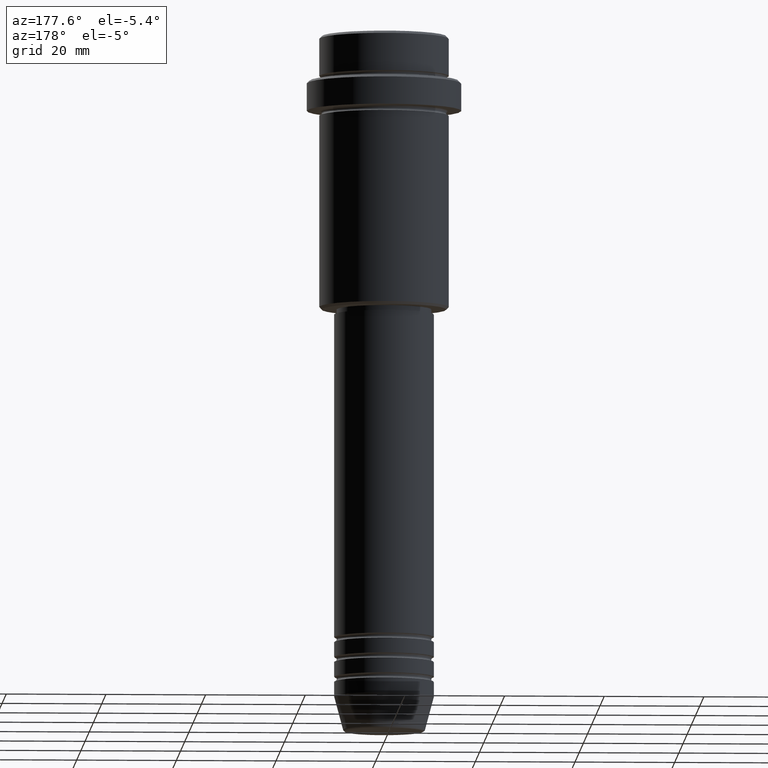
[diagram: clean part render]
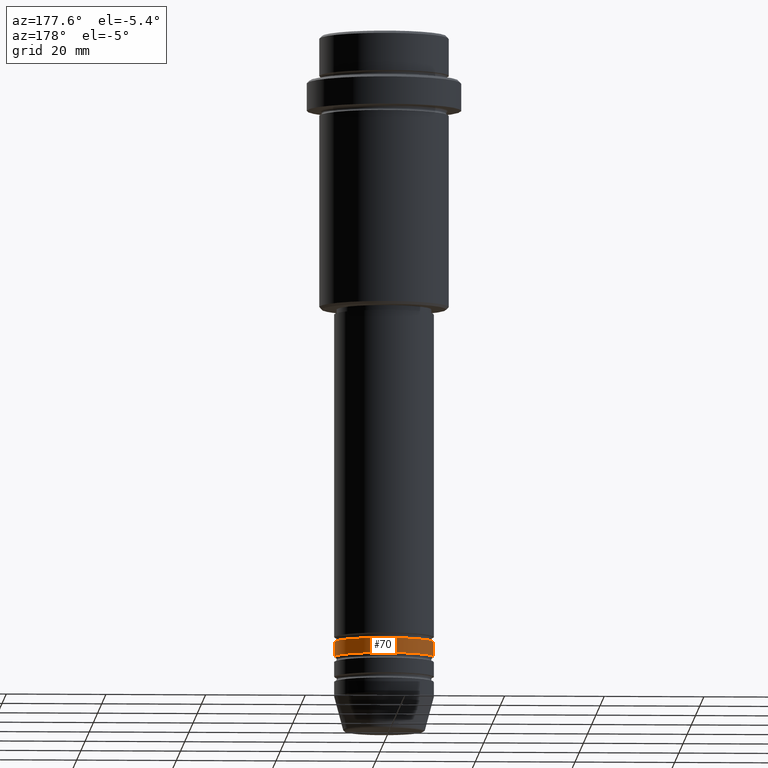
[diagram: same view with one face highlighted and labeled with its STEP entity id]
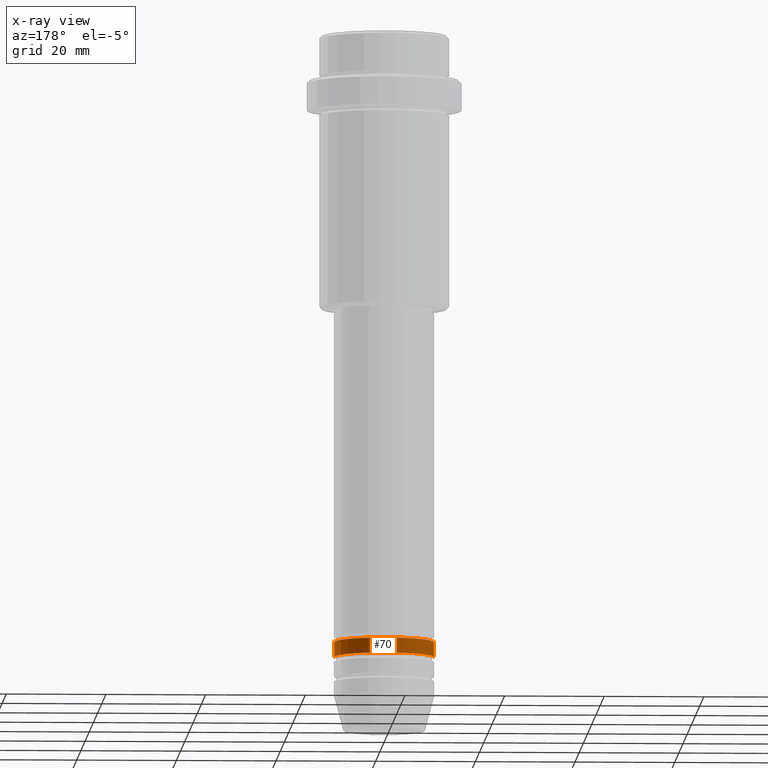
[diagram: x-ray of the same camera — body ghosted, the highlighted face saturated]
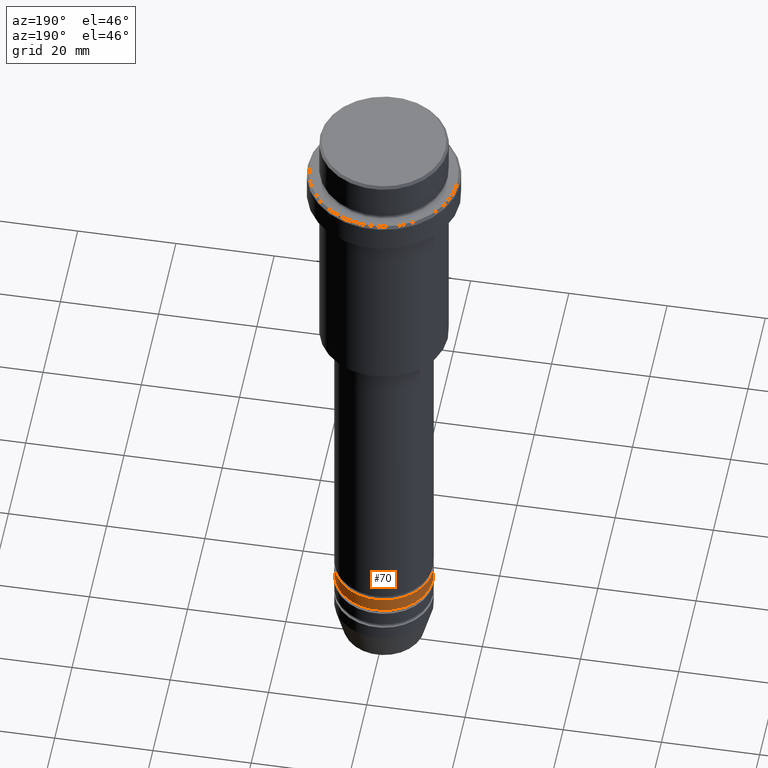
[diagram: same view with one face highlighted and labeled with its STEP entity id]
A machine part, auxiliary view. The second image highlights one B-rep face of the part: STEP entity #70.
The next image is the same camera in x-ray: the body ghosted, the highlighted face saturated — about 0% of this face is hidden behind the body in this view.
A second angle (auxiliary view) of the same face is appended — the face is thin or edge-on in the first view.
In plain terms, the highlighted cylindrical surface (partial cylindrical patch) has radius 10 mm, axis along (-0, -0, 1).
Its self-contained STEP definition (entity closure, byte-faithful):
#7 = AXIS2_PLACEMENT_3D ( 'NONE', #958, #201, #1055 ) ;
#24 = DIRECTION ( 'NONE',  ( -0.000000000000000000, -0.000000000000000000, 1.000000000000000000 ) ) ;
#47 = EDGE_CURVE ( 'NONE', #1379, #1417, #1242, .T. ) ;
#50 = DIRECTION ( 'NONE',  ( -0.000000000000000000, -0.000000000000000000, 1.000000000000000000 ) ) ;
#70 = ADVANCED_FACE ( 'NONE', ( #1338 ), #253, .T. ) ;
#201 = DIRECTION ( 'NONE',  ( -0.000000000000000000, -0.000000000000000000, 1.000000000000000000 ) ) ;
#206 = ORIENTED_EDGE ( 'NONE', *, *, #1255, .T. ) ;
#253 = CYLINDRICAL_SURFACE ( 'NONE', #472, 10.00000000000000000 ) ;
#267 = VERTEX_POINT ( 'NONE', #779 ) ;
#472 = AXIS2_PLACEMENT_3D ( 'NONE', #692, #50, #1348 ) ;
#483 = DIRECTION ( 'NONE',  ( -0.000000000000000000, -0.000000000000000000, 1.000000000000000000 ) ) ;
#487 = DIRECTION ( 'NONE',  ( -0.000000000000000000, -0.000000000000000000, 1.000000000000000000 ) ) ;
#603 = CARTESIAN_POINT ( 'NONE',  ( 0.000000000000000000, 0.000000000000000000, -124.9999999999999005 ) ) ;
#605 = EDGE_CURVE ( 'NONE', #865, #267, #1286, .T. ) ;
#633 = AXIS2_PLACEMENT_3D ( 'NONE', #603, #487, #1048 ) ;
#692 = CARTESIAN_POINT ( 'NONE',  ( 0.000000000000000000, 0.000000000000000000, 0.000000000000000000 ) ) ;
#727 = VECTOR ( 'NONE', #24, 1000.000000000000000 ) ;
#769 = ORIENTED_EDGE ( 'NONE', *, *, #895, .F. ) ;
#779 = CARTESIAN_POINT ( 'NONE',  ( -10.00000000000000000, 1.224646799147353256E-15, -121.9999999999999005 ) ) ;
#783 = CARTESIAN_POINT ( 'NONE',  ( 10.00000000000000000, 0.000000000000000000, -121.9999999999999005 ) ) ;
#809 = CARTESIAN_POINT ( 'NONE',  ( -10.00000000000000000, 1.224646799147353256E-15, -124.9999999999999005 ) ) ;
#865 = VERTEX_POINT ( 'NONE', #783 ) ;
#887 = ORIENTED_EDGE ( 'NONE', *, *, #605, .F. ) ;
#895 = EDGE_CURVE ( 'NONE', #1379, #865, #896, .T. ) ;
#896 = LINE ( 'NONE', #1344, #1111 ) ;
#932 = EDGE_LOOP ( 'NONE', ( #1002, #206, #887, #769 ) ) ;
#958 = CARTESIAN_POINT ( 'NONE',  ( 0.000000000000000000, 0.000000000000000000, -121.9999999999999005 ) ) ;
#1002 = ORIENTED_EDGE ( 'NONE', *, *, #47, .T. ) ;
#1013 = CARTESIAN_POINT ( 'NONE',  ( -10.00000000000000000, 1.224646799147353256E-15, 0.000000000000000000 ) ) ;
#1034 = CARTESIAN_POINT ( 'NONE',  ( 10.00000000000000000, 0.000000000000000000, -124.9999999999999005 ) ) ;
#1048 = DIRECTION ( 'NONE',  ( 1.000000000000000000, 0.000000000000000000, 0.000000000000000000 ) ) ;
#1055 = DIRECTION ( 'NONE',  ( 1.000000000000000000, 0.000000000000000000, 0.000000000000000000 ) ) ;
#1111 = VECTOR ( 'NONE', #483, 1000.000000000000000 ) ;
#1121 = LINE ( 'NONE', #1013, #727 ) ;
#1242 = CIRCLE ( 'NONE', #633, 10.00000000000000000 ) ;
#1255 = EDGE_CURVE ( 'NONE', #1417, #267, #1121, .T. ) ;
#1286 = CIRCLE ( 'NONE', #7, 10.00000000000000000 ) ;
#1338 = FACE_OUTER_BOUND ( 'NONE', #932, .T. ) ;
#1344 = CARTESIAN_POINT ( 'NONE',  ( 10.00000000000000000, 0.000000000000000000, 0.000000000000000000 ) ) ;
#1348 = DIRECTION ( 'NONE',  ( 1.000000000000000000, 0.000000000000000000, 0.000000000000000000 ) ) ;
#1379 = VERTEX_POINT ( 'NONE', #1034 ) ;
#1417 = VERTEX_POINT ( 'NONE', #809 ) ;